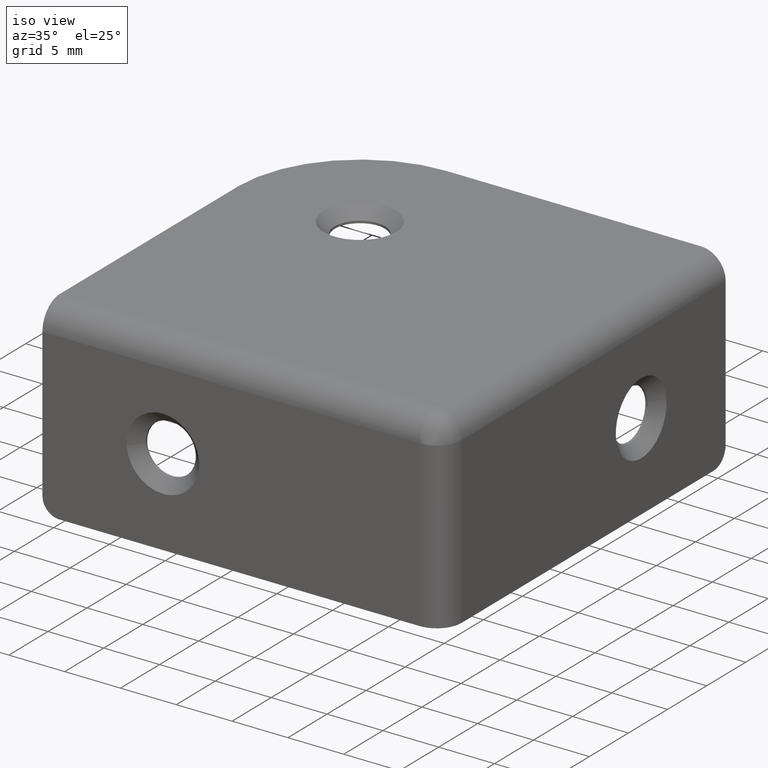
[diagram: clean part render]
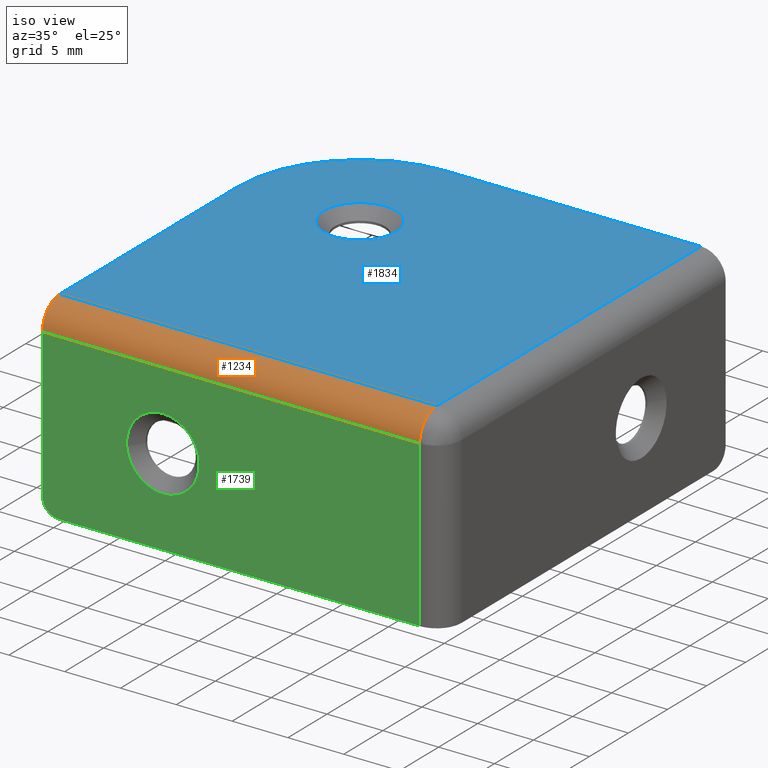
[diagram: same view with three faces highlighted in distinct colors, each labeled with its STEP entity id]
A machine part, iso view with three faces highlighted in distinct colors.
Their STEP definitions:

[orange] entity #1234 — the highlighted face is a freeform B-spline surface patch.
#1066=CARTESIAN_POINT('',(-2.200000000000000,0.0,14.800000000000001));
#1067=VERTEX_POINT('',#1066);
#1113=CARTESIAN_POINT('',(-2.200000000000000,2.200000000000000,17.0));
#1114=VERTEX_POINT('',#1113);
#1128=CARTESIAN_POINT('',(-2.200000000000000,2.200000000000000,17.0));
#1129=CARTESIAN_POINT('',(-2.200000000000001,0.0,17.000000000000004));
#1130=CARTESIAN_POINT('',(-2.200000000000000,0.0,14.800000000000001));
#1138=(BOUNDED_CURVE()B_SPLINE_CURVE(2,(#1128,#1129,#1130),.UNSPECIFIED.,.F.,.U.)CURVE()GEOMETRIC_REPRESENTATION_ITEM()QUASI_UNIFORM_CURVE()RATIONAL_B_SPLINE_CURVE((1.0,0.707106781186548,1.0))REPRESENTATION_ITEM(''));
#1139=EDGE_CURVE('',#1114,#1067,#1138,.T.);
#1190=CARTESIAN_POINT('',(-36.845000000000013,0.000753885053775,14.742410713722681));
#1191=CARTESIAN_POINT('',(-1.333874999999999,0.000753885053775,14.742410713722681));
#1192=CARTESIAN_POINT('',(-36.845000000000013,-0.062682978050067,17.164966778294620));
#1193=CARTESIAN_POINT('',(-1.333874999999999,-0.062682978050067,17.164966778294620));
#1194=CARTESIAN_POINT('',(-36.845000000000013,2.354704362105173,16.994553840840005));
#1195=CARTESIAN_POINT('',(-1.333874999999999,2.354704362105173,16.994553840840005));
#1203=(BOUNDED_SURFACE()B_SPLINE_SURFACE(1,2,((#1190,#1192,#1194),(#1191,#1193,#1195)),.UNSPECIFIED.,.F.,.F.,.U.)B_SPLINE_SURFACE_WITH_KNOTS((2,2),(3,3),(0.0,35.511125000000007),(0.0,3.896513391760081),.UNSPECIFIED.)GEOMETRIC_REPRESENTATION_ITEM()RATIONAL_B_SPLINE_SURFACE(((1.0,0.670944203371848,0.996392687741199),(1.0,0.670944203371848,0.996392687741199)))REPRESENTATION_ITEM('')SURFACE());
#1204=CARTESIAN_POINT('',(-36.0,0.0,14.800000000000001));
#1205=VERTEX_POINT('',#1204);
#1206=CARTESIAN_POINT('',(-36.0,2.200000000000000,17.0));
#1207=VERTEX_POINT('',#1206);
#1208=CARTESIAN_POINT('',(-36.0,0.0,14.800000000000001));
#1209=CARTESIAN_POINT('',(-36.0,0.0,17.000000000000004));
#1210=CARTESIAN_POINT('',(-36.0,2.200000000000000,17.0));
#1218=(BOUNDED_CURVE()B_SPLINE_CURVE(2,(#1208,#1209,#1210),.UNSPECIFIED.,.F.,.U.)CURVE()GEOMETRIC_REPRESENTATION_ITEM()QUASI_UNIFORM_CURVE()RATIONAL_B_SPLINE_CURVE((1.0,0.707106781186548,1.0))REPRESENTATION_ITEM(''));
#1219=EDGE_CURVE('',#1205,#1207,#1218,.T.);
#1220=ORIENTED_EDGE('',*,*,#1219,.F.);
#1221=CARTESIAN_POINT('',(-2.200000000000000,0.0,14.800000000000001));
#1222=CARTESIAN_POINT('',(-36.0,0.0,14.800000000000001));
#1223=QUASI_UNIFORM_CURVE('',1,(#1221,#1222),.UNSPECIFIED.,.F.,.U.);
#1224=EDGE_CURVE('',#1067,#1205,#1223,.T.);
#1225=ORIENTED_EDGE('',*,*,#1224,.F.);
#1226=ORIENTED_EDGE('',*,*,#1139,.F.);
#1227=CARTESIAN_POINT('',(-36.0,2.200000000000000,17.0));
#1228=CARTESIAN_POINT('',(-2.200000000000000,2.200000000000000,17.0));
#1229=QUASI_UNIFORM_CURVE('',1,(#1227,#1228),.UNSPECIFIED.,.F.,.U.);
#1230=EDGE_CURVE('',#1207,#1114,#1229,.T.);
#1231=ORIENTED_EDGE('',*,*,#1230,.F.);
#1232=EDGE_LOOP('',(#1220,#1225,#1226,#1231));
#1233=FACE_OUTER_BOUND('',#1232,.T.);
#1234=ADVANCED_FACE('',(#1233),#1203,.T.);

[blue] entity #1834 — the highlighted face is a freeform B-spline surface patch.
#264=CARTESIAN_POINT('',(-25.454992061163491,28.439981334635110,17.000000000006210));
#265=VERTEX_POINT('',#264);
#271=CARTESIAN_POINT('',(-28.449999999999999,25.199999999999999,17.0));
#272=VERTEX_POINT('',#271);
#273=CARTESIAN_POINT('',(-28.449999999999999,25.199999999999999,17.0));
#274=CARTESIAN_POINT('',(-28.449999999999992,28.204269097800807,16.999999999999996));
#275=CARTESIAN_POINT('',(-25.454992061163491,28.439981334635117,17.000000000006207));
#283=(BOUNDED_CURVE()B_SPLINE_CURVE(2,(#273,#274,#275),.UNSPECIFIED.,.F.,.U.)B_SPLINE_CURVE_WITH_KNOTS((3,3),(0.0,0.236331300627740),.UNSPECIFIED.)CURVE()GEOMETRIC_REPRESENTATION_ITEM()RATIONAL_B_SPLINE_CURVE((1.0,0.723120658611086,0.969723356161325))REPRESENTATION_ITEM(''));
#284=EDGE_CURVE('',#272,#265,#283,.T.);
#286=CARTESIAN_POINT('',(-24.945007938836511,21.960018665364888,17.000000000006210));
#287=VERTEX_POINT('',#286);
#288=CARTESIAN_POINT('',(-24.945007938836511,21.960018665364881,17.000000000006210));
#289=CARTESIAN_POINT('',(-25.072307152177341,21.949999999999996,17.000000000000004));
#290=CARTESIAN_POINT('',(-25.199999999999999,21.949999999999999,17.0));
#291=CARTESIAN_POINT('',(-28.450000000000003,21.950000000000003,17.000000000000007));
#292=CARTESIAN_POINT('',(-28.449999999999999,25.199999999999999,17.0));
#300=(BOUNDED_CURVE()B_SPLINE_CURVE(2,(#288,#289,#290,#291,#292),.UNSPECIFIED.,.F.,.U.)B_SPLINE_CURVE_WITH_KNOTS((3,2,3),(0.736331300627740,0.750000000000000,1.0),.UNSPECIFIED.)CURVE()GEOMETRIC_REPRESENTATION_ITEM()RATIONAL_B_SPLINE_CURVE((0.969723356161325,0.983986122575462,1.0,0.707106781186547,1.0))REPRESENTATION_ITEM(''));
#301=EDGE_CURVE('',#287,#272,#300,.T.);
#338=CARTESIAN_POINT('',(-21.949999999999999,25.199999999999999,17.0));
#339=VERTEX_POINT('',#338);
#340=CARTESIAN_POINT('',(-21.949999999999999,25.199999999999999,17.0));
#341=CARTESIAN_POINT('',(-21.950000000000003,22.195730902199173,17.0));
#342=CARTESIAN_POINT('',(-24.945007938836511,21.960018665364888,17.000000000006207));
#350=(BOUNDED_CURVE()B_SPLINE_CURVE(2,(#340,#341,#342),.UNSPECIFIED.,.F.,.U.)B_SPLINE_CURVE_WITH_KNOTS((3,3),(0.500000000000000,0.736331300627741),.UNSPECIFIED.)CURVE()GEOMETRIC_REPRESENTATION_ITEM()RATIONAL_B_SPLINE_CURVE((1.0,0.723120658611085,0.969723356161327))REPRESENTATION_ITEM(''));
#351=EDGE_CURVE('',#339,#287,#350,.T.);
#353=CARTESIAN_POINT('',(-25.454992061163484,28.439981334635110,17.000000000006207));
#354=CARTESIAN_POINT('',(-25.327692847822657,28.450000000000003,16.999999999999996));
#355=CARTESIAN_POINT('',(-25.199999999999999,28.449999999999999,17.0));
#356=CARTESIAN_POINT('',(-21.950000000000003,28.450000000000003,17.000000000000007));
#357=CARTESIAN_POINT('',(-21.949999999999999,25.199999999999999,17.0));
#365=(BOUNDED_CURVE()B_SPLINE_CURVE(2,(#353,#354,#355,#356,#357),.UNSPECIFIED.,.F.,.U.)B_SPLINE_CURVE_WITH_KNOTS((3,2,3),(0.236331300627740,0.250000000000000,0.500000000000000),.UNSPECIFIED.)CURVE()GEOMETRIC_REPRESENTATION_ITEM()RATIONAL_B_SPLINE_CURVE((0.969723356161325,0.983986122575461,1.0,0.707106781186547,1.0))REPRESENTATION_ITEM(''));
#366=EDGE_CURVE('',#265,#339,#365,.T.);
#1113=CARTESIAN_POINT('',(-2.200000000000000,2.200000000000000,17.0));
#1114=VERTEX_POINT('',#1113);
#1159=CARTESIAN_POINT('',(-2.200000000000000,36.0,17.0));
#1160=VERTEX_POINT('',#1159);
#1176=CARTESIAN_POINT('',(-2.200000000000000,2.200000000000000,17.0));
#1177=CARTESIAN_POINT('',(-2.200000000000000,36.0,17.0));
#1178=QUASI_UNIFORM_CURVE('',1,(#1176,#1177),.UNSPECIFIED.,.F.,.U.);
#1179=EDGE_CURVE('',#1114,#1160,#1178,.T.);
#1206=CARTESIAN_POINT('',(-36.0,2.200000000000000,17.0));
#1207=VERTEX_POINT('',#1206);
#1227=CARTESIAN_POINT('',(-36.0,2.200000000000000,17.0));
#1228=CARTESIAN_POINT('',(-2.200000000000000,2.200000000000000,17.0));
#1229=QUASI_UNIFORM_CURVE('',1,(#1227,#1228),.UNSPECIFIED.,.F.,.U.);
#1230=EDGE_CURVE('',#1207,#1114,#1229,.T.);
#1456=CARTESIAN_POINT('',(-36.0,25.0,17.0));
#1457=VERTEX_POINT('',#1456);
#1458=CARTESIAN_POINT('',(-25.0,36.0,17.0));
#1459=VERTEX_POINT('',#1458);
#1460=CARTESIAN_POINT('',(-36.000000000000007,25.0,17.0));
#1461=CARTESIAN_POINT('',(-36.000000000000014,36.000000000000014,17.000000000000004));
#1462=CARTESIAN_POINT('',(-25.0,36.000000000000007,17.0));
#1470=(BOUNDED_CURVE()B_SPLINE_CURVE(2,(#1460,#1461,#1462),.UNSPECIFIED.,.F.,.U.)CURVE()GEOMETRIC_REPRESENTATION_ITEM()QUASI_UNIFORM_CURVE()RATIONAL_B_SPLINE_CURVE((1.0,0.707106781186548,1.0))REPRESENTATION_ITEM(''));
#1471=EDGE_CURVE('',#1457,#1459,#1470,.T.);
#1569=CARTESIAN_POINT('',(-25.0,36.0,17.0));
#1570=CARTESIAN_POINT('',(-2.200000000000000,36.0,17.0));
#1571=QUASI_UNIFORM_CURVE('',1,(#1569,#1570),.UNSPECIFIED.,.F.,.U.);
#1572=EDGE_CURVE('',#1459,#1160,#1571,.T.);
#1700=CARTESIAN_POINT('',(-36.0,25.0,17.0));
#1701=CARTESIAN_POINT('',(-36.0,2.200000000000000,17.0));
#1702=QUASI_UNIFORM_CURVE('',1,(#1700,#1701),.UNSPECIFIED.,.F.,.U.);
#1703=EDGE_CURVE('',#1457,#1207,#1702,.T.);
#1816=CARTESIAN_POINT('',(-37.688309934489041,0.511690065510962,17.0));
#1817=CARTESIAN_POINT('',(-0.511689158924312,0.511690065510962,17.0));
#1818=CARTESIAN_POINT('',(-37.688309934489041,37.688310841075683,17.0));
#1819=CARTESIAN_POINT('',(-0.511689158924312,37.688310841075683,17.0));
#1820=B_SPLINE_SURFACE_WITH_KNOTS('',1,1,((#1816,#1818),(#1817,#1819)),.UNSPECIFIED.,.F.,.F.,.U.,(2,2),(2,2),(0.0,37.176620775564729),(0.0,37.176620775564722),.UNSPECIFIED.);
#1821=ORIENTED_EDGE('',*,*,#1703,.T.);
#1822=ORIENTED_EDGE('',*,*,#1230,.T.);
#1823=ORIENTED_EDGE('',*,*,#1179,.T.);
#1824=ORIENTED_EDGE('',*,*,#1572,.F.);
#1825=ORIENTED_EDGE('',*,*,#1471,.F.);
#1826=EDGE_LOOP('',(#1821,#1822,#1823,#1824,#1825));
#1827=FACE_OUTER_BOUND('',#1826,.T.);
#1828=ORIENTED_EDGE('',*,*,#351,.T.);
#1829=ORIENTED_EDGE('',*,*,#301,.T.);
#1830=ORIENTED_EDGE('',*,*,#284,.T.);
#1831=ORIENTED_EDGE('',*,*,#366,.T.);
#1832=EDGE_LOOP('',(#1828,#1829,#1830,#1831));
#1833=FACE_BOUND('',#1832,.T.);
#1834=ADVANCED_FACE('',(#1827,#1833),#1820,.T.);

[green] entity #1739 — the highlighted face is a freeform B-spline surface patch.
#920=CARTESIAN_POINT('',(-21.960018665364888,-6.207024E-012,8.054992061163386));
#921=VERTEX_POINT('',#920);
#927=CARTESIAN_POINT('',(-25.199999999999999,0.0,11.049999999999899));
#928=VERTEX_POINT('',#927);
#929=CARTESIAN_POINT('',(-25.199999999999999,0.0,11.049999999999899));
#930=CARTESIAN_POINT('',(-22.195730902199191,0.0,11.049999999999903));
#931=CARTESIAN_POINT('',(-21.960018665364888,-6.207024E-012,8.054992061163386));
#939=(BOUNDED_CURVE()B_SPLINE_CURVE(2,(#929,#930,#931),.UNSPECIFIED.,.F.,.U.)B_SPLINE_CURVE_WITH_KNOTS((3,3),(0.0,0.236331300627740),.UNSPECIFIED.)CURVE()GEOMETRIC_REPRESENTATION_ITEM()RATIONAL_B_SPLINE_CURVE((1.0,0.723120658611086,0.969723356161325))REPRESENTATION_ITEM(''));
#940=EDGE_CURVE('',#928,#921,#939,.T.);
#942=CARTESIAN_POINT('',(-28.439981334635110,-6.207142E-012,7.545007938836411));
#943=VERTEX_POINT('',#942);
#944=CARTESIAN_POINT('',(-28.439981334635117,-6.207142E-012,7.545007938836411));
#945=CARTESIAN_POINT('',(-28.449999999999996,0.0,7.672307152177250));
#946=CARTESIAN_POINT('',(-28.449999999999999,0.0,7.799999999999900));
#947=CARTESIAN_POINT('',(-28.450000000000003,0.0,11.049999999999899));
#948=CARTESIAN_POINT('',(-25.199999999999999,0.0,11.049999999999899));
#956=(BOUNDED_CURVE()B_SPLINE_CURVE(2,(#944,#945,#946,#947,#948),.UNSPECIFIED.,.F.,.U.)B_SPLINE_CURVE_WITH_KNOTS((3,2,3),(0.736331300627740,0.750000000000000,1.0),.UNSPECIFIED.)CURVE()GEOMETRIC_REPRESENTATION_ITEM()RATIONAL_B_SPLINE_CURVE((0.969723356161325,0.983986122575462,1.0,0.707106781186547,1.0))REPRESENTATION_ITEM(''));
#957=EDGE_CURVE('',#943,#928,#956,.T.);
#994=CARTESIAN_POINT('',(-25.199999999999999,0.0,4.549999999999900));
#995=VERTEX_POINT('',#994);
#996=CARTESIAN_POINT('',(-25.199999999999999,0.0,4.549999999999900));
#997=CARTESIAN_POINT('',(-28.204269097800815,0.0,4.549999999999899));
#998=CARTESIAN_POINT('',(-28.439981334635110,-6.207142E-012,7.545007938836411));
#1006=(BOUNDED_CURVE()B_SPLINE_CURVE(2,(#996,#997,#998),.UNSPECIFIED.,.F.,.U.)B_SPLINE_CURVE_WITH_KNOTS((3,3),(0.500000000000000,0.736331300627741),.UNSPECIFIED.)CURVE()GEOMETRIC_REPRESENTATION_ITEM()RATIONAL_B_SPLINE_CURVE((1.0,0.723120658611085,0.969723356161327))REPRESENTATION_ITEM(''));
#1007=EDGE_CURVE('',#995,#943,#1006,.T.);
#1009=CARTESIAN_POINT('',(-21.960018665364881,-6.207024E-012,8.054992061163386));
#1010=CARTESIAN_POINT('',(-21.949999999999996,0.0,7.927692847822550));
#1011=CARTESIAN_POINT('',(-21.949999999999999,0.0,7.799999999999900));
#1012=CARTESIAN_POINT('',(-21.950000000000003,0.0,4.549999999999900));
#1013=CARTESIAN_POINT('',(-25.199999999999999,0.0,4.549999999999900));
#1021=(BOUNDED_CURVE()B_SPLINE_CURVE(2,(#1009,#1010,#1011,#1012,#1013),.UNSPECIFIED.,.F.,.U.)B_SPLINE_CURVE_WITH_KNOTS((3,2,3),(0.236331300627740,0.250000000000000,0.500000000000000),.UNSPECIFIED.)CURVE()GEOMETRIC_REPRESENTATION_ITEM()RATIONAL_B_SPLINE_CURVE((0.969723356161325,0.983986122575462,1.0,0.707106781186547,1.0))REPRESENTATION_ITEM(''));
#1022=EDGE_CURVE('',#921,#995,#1021,.T.);
#1044=CARTESIAN_POINT('',(-2.200000000000000,0.0,0.0));
#1045=VERTEX_POINT('',#1044);
#1066=CARTESIAN_POINT('',(-2.200000000000000,0.0,14.800000000000001));
#1067=VERTEX_POINT('',#1066);
#1081=CARTESIAN_POINT('',(-2.200000000000000,0.0,0.0));
#1082=CARTESIAN_POINT('',(-2.200000000000000,0.0,14.800000000000001));
#1083=QUASI_UNIFORM_CURVE('',1,(#1081,#1082),.UNSPECIFIED.,.F.,.U.);
#1084=EDGE_CURVE('',#1045,#1067,#1083,.T.);
#1204=CARTESIAN_POINT('',(-36.0,0.0,14.800000000000001));
#1205=VERTEX_POINT('',#1204);
#1221=CARTESIAN_POINT('',(-2.200000000000000,0.0,14.800000000000001));
#1222=CARTESIAN_POINT('',(-36.0,0.0,14.800000000000001));
#1223=QUASI_UNIFORM_CURVE('',1,(#1221,#1222),.UNSPECIFIED.,.F.,.U.);
#1224=EDGE_CURVE('',#1067,#1205,#1223,.T.);
#1607=CARTESIAN_POINT('',(-34.500000000000000,0.0,0.0));
#1608=VERTEX_POINT('',#1607);
#1609=CARTESIAN_POINT('',(-34.500000000000000,0.0,0.0));
#1610=CARTESIAN_POINT('',(-2.200000000000000,0.0,0.0));
#1611=QUASI_UNIFORM_CURVE('',1,(#1609,#1610),.UNSPECIFIED.,.F.,.U.);
#1612=EDGE_CURVE('',#1608,#1045,#1611,.T.);
#1650=CARTESIAN_POINT('',(-36.0,0.0,1.500000000000000));
#1651=VERTEX_POINT('',#1650);
#1652=CARTESIAN_POINT('',(-36.000000000000007,0.0,1.500000000000000));
#1653=CARTESIAN_POINT('',(-36.000000000000014,0.0,0.0));
#1654=CARTESIAN_POINT('',(-34.500000000000000,0.0,0.0));
#1662=(BOUNDED_CURVE()B_SPLINE_CURVE(2,(#1652,#1653,#1654),.UNSPECIFIED.,.F.,.U.)CURVE()GEOMETRIC_REPRESENTATION_ITEM()QUASI_UNIFORM_CURVE()RATIONAL_B_SPLINE_CURVE((1.0,0.707106781186548,1.0))REPRESENTATION_ITEM(''));
#1663=EDGE_CURVE('',#1651,#1608,#1662,.T.);
#1694=CARTESIAN_POINT('',(-36.0,0.0,14.800000000000001));
#1695=CARTESIAN_POINT('',(-36.0,0.0,1.500000000000000));
#1696=QUASI_UNIFORM_CURVE('',1,(#1694,#1695),.UNSPECIFIED.,.F.,.U.);
#1697=EDGE_CURVE('',#1205,#1651,#1696,.T.);
#1721=CARTESIAN_POINT('',(-37.688309934489041,0.0,15.539260249178350));
#1722=CARTESIAN_POINT('',(-0.511689158924312,0.0,15.539260249178350));
#1723=CARTESIAN_POINT('',(-37.688309934489041,0.0,-0.739260381500661));
#1724=CARTESIAN_POINT('',(-0.511689158924312,0.0,-0.739260381500661));
#1725=B_SPLINE_SURFACE_WITH_KNOTS('',1,1,((#1721,#1723),(#1722,#1724)),.UNSPECIFIED.,.F.,.F.,.U.,(2,2),(2,2),(0.0,37.176620775564729),(0.0,16.278520630679012),.UNSPECIFIED.);
#1726=ORIENTED_EDGE('',*,*,#1612,.T.);
#1727=ORIENTED_EDGE('',*,*,#1084,.T.);
#1728=ORIENTED_EDGE('',*,*,#1224,.T.);
#1729=ORIENTED_EDGE('',*,*,#1697,.T.);
#1730=ORIENTED_EDGE('',*,*,#1663,.T.);
#1731=EDGE_LOOP('',(#1726,#1727,#1728,#1729,#1730));
#1732=FACE_OUTER_BOUND('',#1731,.T.);
#1733=ORIENTED_EDGE('',*,*,#1007,.T.);
#1734=ORIENTED_EDGE('',*,*,#957,.T.);
#1735=ORIENTED_EDGE('',*,*,#940,.T.);
#1736=ORIENTED_EDGE('',*,*,#1022,.T.);
#1737=EDGE_LOOP('',(#1733,#1734,#1735,#1736));
#1738=FACE_BOUND('',#1737,.T.);
#1739=ADVANCED_FACE('',(#1732,#1738),#1725,.F.);